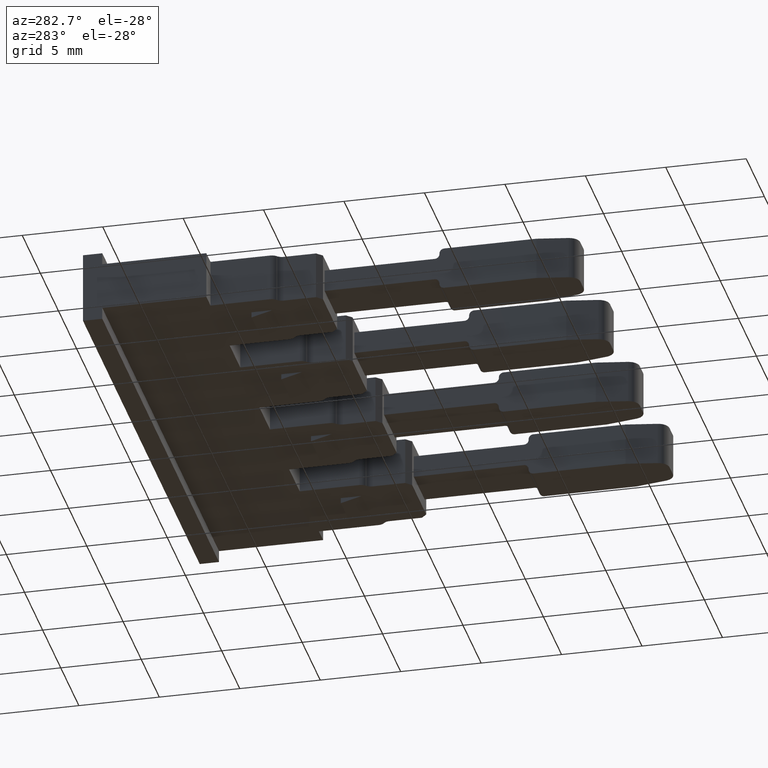
[diagram: clean part render]
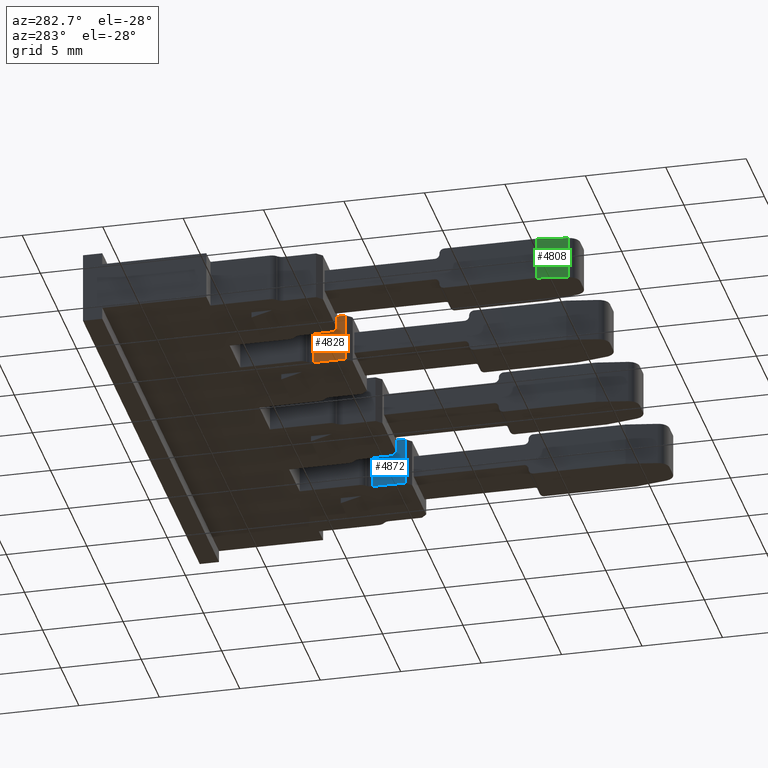
[diagram: same view with three faces highlighted in distinct colors, each labeled with its STEP entity id]
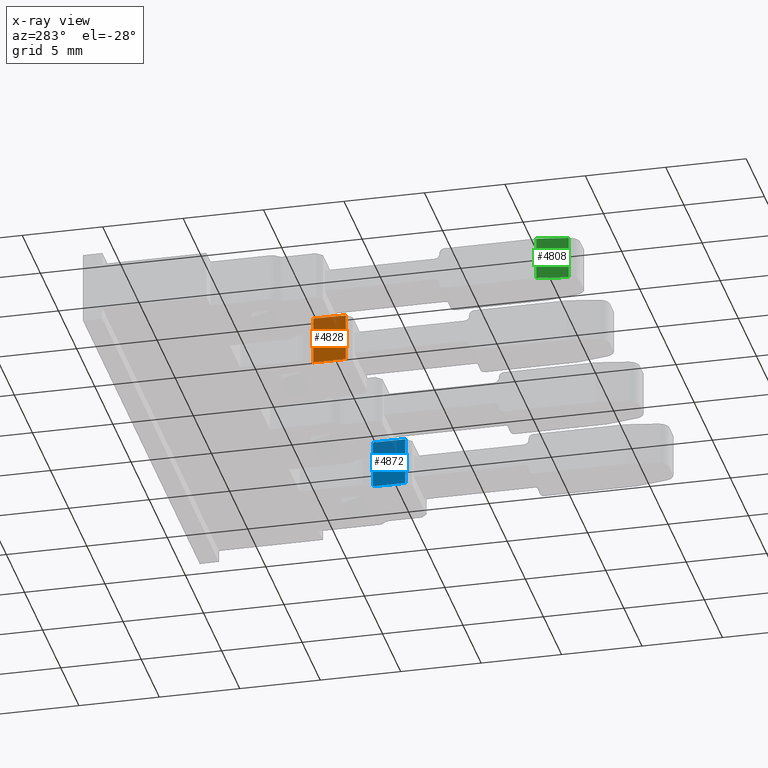
[diagram: x-ray of the same camera — body ghosted, the three highlighted faces saturated]
A machine part, auxiliary view with three faces highlighted in distinct colors.
The next image is the same camera in x-ray (body ghosted, the three faces saturated) — at least one of them is partly hidden behind the body in this view.
Their STEP definitions:

[orange] entity #4828 — the highlighted planar face has unit normal (1, -0, 0).
#93 = VERTEX_POINT ( 'NONE', #566 ) ;
#95 = VERTEX_POINT ( 'NONE', #545 ) ;
#307 = EDGE_LOOP ( 'NONE', ( #3327, #3308, #3342, #3314 ) ) ;
#545 = CARTESIAN_POINT ( 'NONE',  ( 1132.494468933274400, 661.9736497164254800, -1.084202172485504400E-016 ) ) ;
#566 = CARTESIAN_POINT ( 'NONE',  ( 1132.494467228829800, 659.9592796230510900, -1.156482317317871300E-015 ) ) ;
#734 = CARTESIAN_POINT ( 'NONE',  ( 1132.494468933274000, 661.9736493991215400, 3.000000000000000000 ) ) ;
#739 = CARTESIAN_POINT ( 'NONE',  ( 1132.494467228829800, 659.9592796230510900, 3.000000000000000400 ) ) ;
#1271 = VERTEX_POINT ( 'NONE', #734 ) ;
#1292 = VERTEX_POINT ( 'NONE', #739 ) ;
#1594 = LINE ( 'NONE', #1623, #4625 ) ;
#1612 = DIRECTION ( 'NONE',  ( -0.0000000000000000000, 0.0000000000000000000, 1.000000000000000000 ) ) ;
#1623 = CARTESIAN_POINT ( 'NONE',  ( 1132.494468933274400, 661.9736497164254800, 3.000000000000000000 ) ) ;
#2158 = PLANE ( 'NONE',  #4278 ) ;
#2162 = CARTESIAN_POINT ( 'NONE',  ( 1132.494468933274400, 661.9736497164254800, 3.000000000000000000 ) ) ;
#2174 = FACE_OUTER_BOUND ( 'NONE', #307, .T. ) ;
#2184 = DIRECTION ( 'NONE',  ( 0.9999999999991945300, -1.269214834134032900E-006, 0.0000000000000000000 ) ) ;
#2191 = DIRECTION ( 'NONE',  ( 1.269214834134032900E-006, 0.9999999999991945300, 0.0000000000000000000 ) ) ;
#2772 = LINE ( 'NONE', #2774, #4381 ) ;
#2774 = CARTESIAN_POINT ( 'NONE',  ( 1132.494468933274400, 661.9736497164254800, 3.000000000000000000 ) ) ;
#2775 = DIRECTION ( 'NONE',  ( -1.269214834134032900E-006, -0.9999999999991945300, -0.0000000000000000000 ) ) ;
#3028 = DIRECTION ( 'NONE',  ( 0.0000000000000000000, -0.0000000000000000000, -1.000000000000000000 ) ) ;
#3038 = LINE ( 'NONE', #3070, #4533 ) ;
#3070 = CARTESIAN_POINT ( 'NONE',  ( 1132.494466376607300, 659.9592804752735400, 3.000000000000000000 ) ) ;
#3073 = DIRECTION ( 'NONE',  ( 0.0000000000000000000, -1.000000000000000000, -0.0000000000000000000 ) ) ;
#3100 = LINE ( 'NONE', #3103, #4524 ) ;
#3103 = CARTESIAN_POINT ( 'NONE',  ( 1132.494468933274400, 662.7578638201010800, 0.0000000000000000000 ) ) ;
#3308 = ORIENTED_EDGE ( 'NONE', *, *, #4962, .F. ) ;
#3314 = ORIENTED_EDGE ( 'NONE', *, *, #5072, .T. ) ;
#3327 = ORIENTED_EDGE ( 'NONE', *, *, #5054, .F. ) ;
#3342 = ORIENTED_EDGE ( 'NONE', *, *, #5176, .F. ) ;
#4278 = AXIS2_PLACEMENT_3D ( 'NONE', #2162, #2184, #2191 ) ;
#4381 = VECTOR ( 'NONE', #2775, 1000.000000000000100 ) ;
#4524 = VECTOR ( 'NONE', #3073, 1000.000000000000000 ) ;
#4533 = VECTOR ( 'NONE', #3028, 1000.000000000000000 ) ;
#4625 = VECTOR ( 'NONE', #1612, 1000.000000000000000 ) ;
#4828 = ADVANCED_FACE ( 'NONE', ( #2174 ), #2158, .F. ) ;
#4962 = EDGE_CURVE ( 'NONE', #1271, #1292, #2772, .T. ) ;
#5054 = EDGE_CURVE ( 'NONE', #1292, #93, #3038, .T. ) ;
#5072 = EDGE_CURVE ( 'NONE', #95, #93, #3100, .T. ) ;
#5176 = EDGE_CURVE ( 'NONE', #95, #1271, #1594, .T. ) ;

[blue] entity #4872 — the highlighted planar face has unit normal (1, 0, -0).
#19 = VERTEX_POINT ( 'NONE', #462 ) ;
#91 = VERTEX_POINT ( 'NONE', #568 ) ;
#361 = EDGE_LOOP ( 'NONE', ( #3602, #3608, #3628, #3646 ) ) ;
#462 = CARTESIAN_POINT ( 'NONE',  ( 1148.894468933274800, 661.9736497164254800, -1.084202172485504400E-016 ) ) ;
#568 = CARTESIAN_POINT ( 'NONE',  ( 1148.894470360060300, 659.9592811886663000, -1.156482317317871300E-015 ) ) ;
#741 = CARTESIAN_POINT ( 'NONE',  ( 1148.894470360060500, 659.9592811886663000, 3.000000000000000400 ) ) ;
#746 = CARTESIAN_POINT ( 'NONE',  ( 1148.894468933274300, 661.9736499820405700, 3.000000000000000000 ) ) ;
#1273 = VERTEX_POINT ( 'NONE', #741 ) ;
#1277 = VERTEX_POINT ( 'NONE', #746 ) ;
#1864 = LINE ( 'NONE', #1874, #4070 ) ;
#1868 = DIRECTION ( 'NONE',  ( -0.0000000000000000000, -0.0000000000000000000, -1.000000000000000000 ) ) ;
#1874 = CARTESIAN_POINT ( 'NONE',  ( 1148.894471073453100, 659.9592804752735400, 3.000000000000000000 ) ) ;
#1933 = CARTESIAN_POINT ( 'NONE',  ( 1148.894468933274800, 661.9736497164254800, 3.000000000000000000 ) ) ;
#1934 = DIRECTION ( 'NONE',  ( 0.0000000000000000000, 0.0000000000000000000, 1.000000000000000000 ) ) ;
#1947 = LINE ( 'NONE', #1933, #4061 ) ;
#2377 = FACE_OUTER_BOUND ( 'NONE', #361, .T. ) ;
#2379 = CARTESIAN_POINT ( 'NONE',  ( 1148.894471073453100, 659.9592804752735400, 3.000000000000000000 ) ) ;
#2381 = DIRECTION ( 'NONE',  ( -1.062455896942234500E-006, 0.9999999999994355600, 0.0000000000000000000 ) ) ;
#2390 = DIRECTION ( 'NONE',  ( 0.9999999999994356700, 1.062455896942234700E-006, -0.0000000000000000000 ) ) ;
#2403 = PLANE ( 'NONE',  #4259 ) ;
#2836 = LINE ( 'NONE', #2845, #4427 ) ;
#2845 = CARTESIAN_POINT ( 'NONE',  ( 1148.894471073453100, 659.9592804752735400, 3.000000000000000000 ) ) ;
#2853 = DIRECTION ( 'NONE',  ( 1.062455896942234500E-006, -0.9999999999994355600, -0.0000000000000000000 ) ) ;
#2913 = LINE ( 'NONE', #2950, #4491 ) ;
#2942 = DIRECTION ( 'NONE',  ( 0.0000000000000000000, -1.000000000000000000, -0.0000000000000000000 ) ) ;
#2950 = CARTESIAN_POINT ( 'NONE',  ( 1148.894468933274800, 662.7578638201010800, 0.0000000000000000000 ) ) ;
#3602 = ORIENTED_EDGE ( 'NONE', *, *, #5274, .F. ) ;
#3608 = ORIENTED_EDGE ( 'NONE', *, *, #4984, .F. ) ;
#3628 = ORIENTED_EDGE ( 'NONE', *, *, #5289, .F. ) ;
#3646 = ORIENTED_EDGE ( 'NONE', *, *, #5015, .T. ) ;
#4061 = VECTOR ( 'NONE', #1934, 1000.000000000000000 ) ;
#4070 = VECTOR ( 'NONE', #1868, 1000.000000000000000 ) ;
#4259 = AXIS2_PLACEMENT_3D ( 'NONE', #2379, #2390, #2381 ) ;
#4427 = VECTOR ( 'NONE', #2853, 1000.000000000000100 ) ;
#4491 = VECTOR ( 'NONE', #2942, 1000.000000000000000 ) ;
#4872 = ADVANCED_FACE ( 'NONE', ( #2377 ), #2403, .F. ) ;
#4984 = EDGE_CURVE ( 'NONE', #1277, #1273, #2836, .T. ) ;
#5015 = EDGE_CURVE ( 'NONE', #19, #91, #2913, .T. ) ;
#5274 = EDGE_CURVE ( 'NONE', #1273, #91, #1864, .T. ) ;
#5289 = EDGE_CURVE ( 'NONE', #19, #1277, #1947, .T. ) ;

[green] entity #4808 — the highlighted planar face has unit normal (0.9848, 0.1736, 0).
#199 = VERTEX_POINT ( 'NONE', #639 ) ;
#210 = VERTEX_POINT ( 'NONE', #676 ) ;
#236 = VERTEX_POINT ( 'NONE', #700 ) ;
#249 = VERTEX_POINT ( 'NONE', #677 ) ;
#414 = EDGE_LOOP ( 'NONE', ( #3724, #3708, #3684, #3741 ) ) ;
#639 = CARTESIAN_POINT ( 'NONE',  ( 1125.094494090349600, 646.4455650513584700, 0.1522013187405617000 ) ) ;
#676 = CARTESIAN_POINT ( 'NONE',  ( 1125.433319294938700, 644.5239867421933000, 0.1522013187405756600 ) ) ;
#677 = CARTESIAN_POINT ( 'NONE',  ( 1125.433319294938400, 644.5239867421933000, 2.847804784774859800 ) ) ;
#700 = CARTESIAN_POINT ( 'NONE',  ( 1125.094494254128900, 646.4455650513584700, 2.847804784774840700 ) ) ;
#800 = DIRECTION ( 'NONE',  ( 5.202683950075582800E-014, 9.173720111081573500E-015, -1.000000000000000000 ) ) ;
#806 = LINE ( 'NONE', #808, #4181 ) ;
#808 = CARTESIAN_POINT ( 'NONE',  ( 1125.433319294939100, 644.5239867421934200, -8.894767489098216000 ) ) ;
#844 = LINE ( 'NONE', #854, #4129 ) ;
#854 = CARTESIAN_POINT ( 'NONE',  ( 1125.094494254128900, 646.4455650513584700, 1.499999999999889400 ) ) ;
#855 = DIRECTION ( 'NONE',  ( 5.364441115151282900E-014, 4.375089443188943600E-021, -1.000000000000000000 ) ) ;
#1971 = DIRECTION ( 'NONE',  ( 0.1736478946976841300, -0.9848078029072788700, 9.334970462687653300E-015 ) ) ;
#1972 = CARTESIAN_POINT ( 'NONE',  ( 1125.433319294938700, 644.5239867421933000, 0.1522013187405810700 ) ) ;
#1987 = LINE ( 'NONE', #1972, #4086 ) ;
#1988 = LINE ( 'NONE', #1991, #4065 ) ;
#1989 = DIRECTION ( 'NONE',  ( -0.1736478946976841300, 0.9848078029072788700, -9.321079137594365300E-015 ) ) ;
#1991 = CARTESIAN_POINT ( 'NONE',  ( 1125.094493762790800, 646.4455650513584700, 2.847804784774840700 ) ) ;
#3115 = CARTESIAN_POINT ( 'NONE',  ( 1125.094493762791400, 646.4455650513584700, -8.894767489098216000 ) ) ;
#3116 = DIRECTION ( 'NONE',  ( 0.9848078029072789800, 0.1736478946976842100, 5.282943468478410200E-014 ) ) ;
#3121 = PLANE ( 'NONE',  #4216 ) ;
#3122 = FACE_OUTER_BOUND ( 'NONE', #414, .T. ) ;
#3125 = DIRECTION ( 'NONE',  ( -0.1736478946976841900, 0.9848078029072788700, 0.0000000000000000000 ) ) ;
#3684 = ORIENTED_EDGE ( 'NONE', *, *, #4724, .T. ) ;
#3708 = ORIENTED_EDGE ( 'NONE', *, *, #5301, .F. ) ;
#3724 = ORIENTED_EDGE ( 'NONE', *, *, #4708, .F. ) ;
#3741 = ORIENTED_EDGE ( 'NONE', *, *, #5302, .F. ) ;
#4065 = VECTOR ( 'NONE', #1971, 1000.000000000000200 ) ;
#4086 = VECTOR ( 'NONE', #1989, 1000.000000000000200 ) ;
#4129 = VECTOR ( 'NONE', #855, 1000.000000000000000 ) ;
#4181 = VECTOR ( 'NONE', #800, 1000.000000000000000 ) ;
#4216 = AXIS2_PLACEMENT_3D ( 'NONE', #3115, #3116, #3125 ) ;
#4708 = EDGE_CURVE ( 'NONE', #249, #210, #806, .T. ) ;
#4724 = EDGE_CURVE ( 'NONE', #236, #199, #844, .T. ) ;
#4808 = ADVANCED_FACE ( 'NONE', ( #3122 ), #3121, .F. ) ;
#5301 = EDGE_CURVE ( 'NONE', #236, #249, #1988, .T. ) ;
#5302 = EDGE_CURVE ( 'NONE', #210, #199, #1987, .T. ) ;